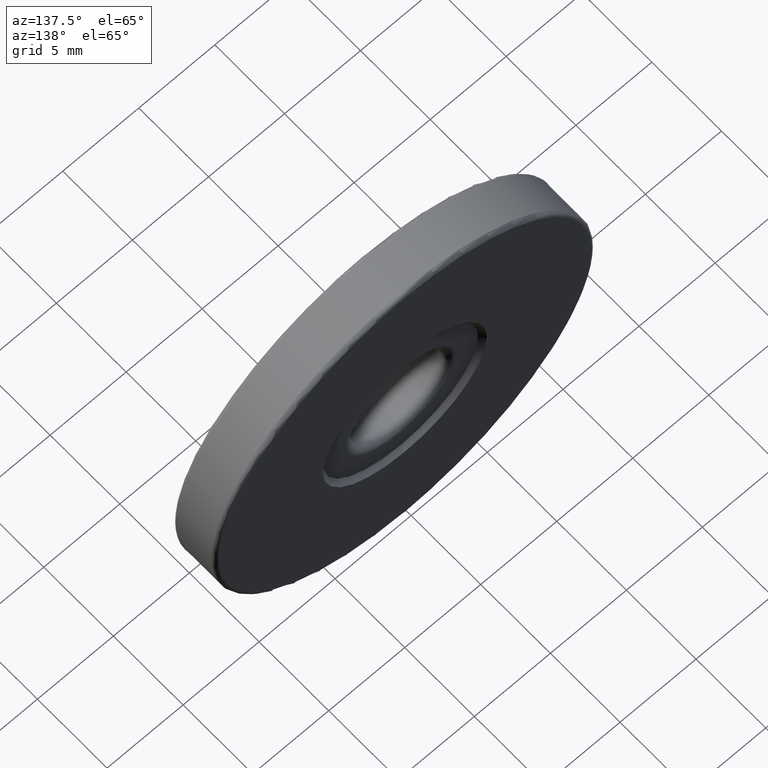
[diagram: clean part render]
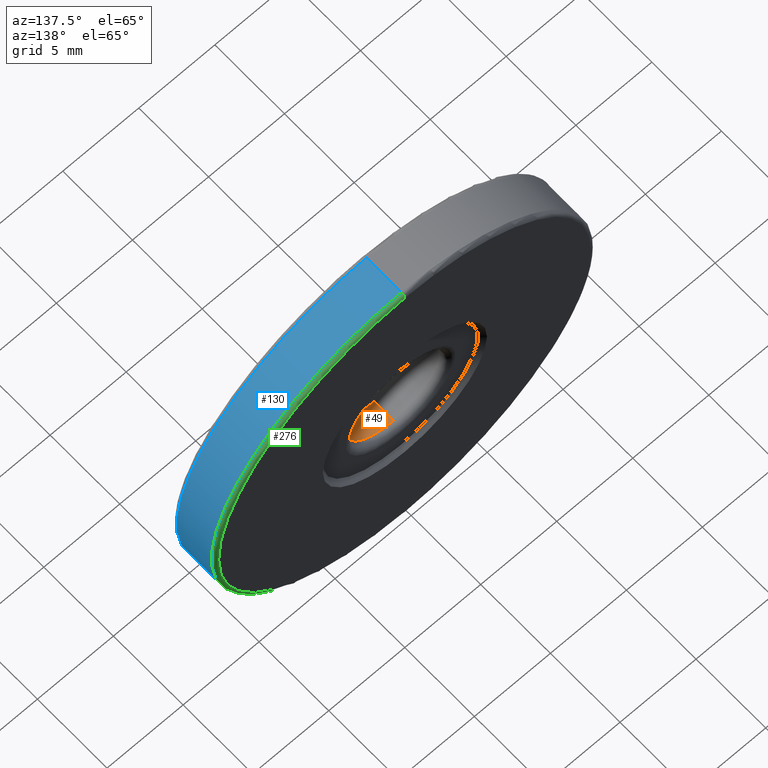
[diagram: same view with three faces highlighted in distinct colors, each labeled with its STEP entity id]
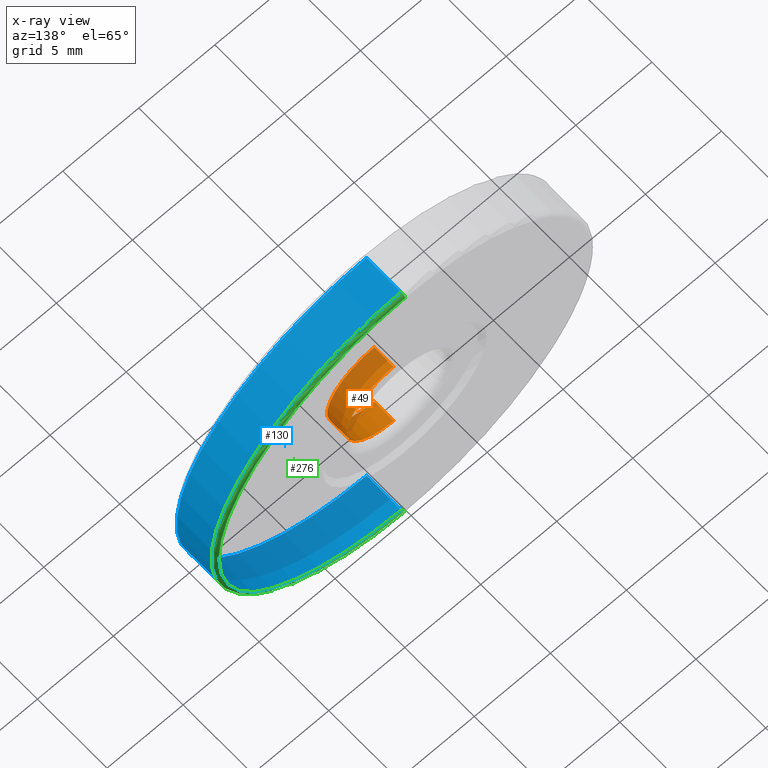
[diagram: x-ray of the same camera — body ghosted, the three highlighted faces saturated]
A machine part, auxiliary view with three faces highlighted in distinct colors.
The next image is the same camera in x-ray (body ghosted, the three faces saturated) — at least one of them is partly hidden behind the body in this view.
Their STEP definitions:

[orange] entity #49 — the highlighted cylindrical surface (partial cylindrical patch) has radius 3.1 mm, axis along (-0, 1, -0).
#22 = VECTOR ( 'NONE', #591, 1000.000000000000000 ) ;
#28 = VERTEX_POINT ( 'NONE', #466 ) ;
#35 = DIRECTION ( 'NONE',  ( 0.0000000000000000000, -1.000000000000000000, 0.0000000000000000000 ) ) ;
#39 = CARTESIAN_POINT ( 'NONE',  ( -4.682026255059964726, -2.294975976998275158, 25.00000000000000000 ) ) ;
#49 = ADVANCED_FACE ( 'NONE', ( #149 ), #342, .F. ) ;
#56 = CARTESIAN_POINT ( 'NONE',  ( -4.682026255059964726, -3.094975976998274536, 25.00000000000000000 ) ) ;
#67 = LINE ( 'NONE', #394, #425 ) ;
#73 = CIRCLE ( 'NONE', #305, 3.099999999999998757 ) ;
#92 = EDGE_LOOP ( 'NONE', ( #614, #600, #431, #328 ) ) ;
#125 = AXIS2_PLACEMENT_3D ( 'NONE', #56, #532, #430 ) ;
#147 = VERTEX_POINT ( 'NONE', #383 ) ;
#149 = FACE_OUTER_BOUND ( 'NONE', #92, .T. ) ;
#185 = DIRECTION ( 'NONE',  ( 0.0000000000000000000, 0.0000000000000000000, -1.000000000000000000 ) ) ;
#202 = EDGE_CURVE ( 'NONE', #147, #509, #599, .T. ) ;
#217 = DIRECTION ( 'NONE',  ( -0.0000000000000000000, 1.000000000000000000, -0.0000000000000000000 ) ) ;
#305 = AXIS2_PLACEMENT_3D ( 'NONE', #446, #538, #307 ) ;
#307 = DIRECTION ( 'NONE',  ( 0.0000000000000000000, 0.0000000000000000000, 1.000000000000000000 ) ) ;
#313 = CARTESIAN_POINT ( 'NONE',  ( -4.682026255059964726, -3.094975976998274536, 21.90000000000000213 ) ) ;
#315 = EDGE_CURVE ( 'NONE', #326, #28, #67, .T. ) ;
#326 = VERTEX_POINT ( 'NONE', #347 ) ;
#328 = ORIENTED_EDGE ( 'NONE', *, *, #339, .T. ) ;
#334 = AXIS2_PLACEMENT_3D ( 'NONE', #39, #35, #185 ) ;
#339 = EDGE_CURVE ( 'NONE', #28, #509, #73, .T. ) ;
#342 = CYLINDRICAL_SURFACE ( 'NONE', #125, 3.099999999999998757 ) ;
#347 = CARTESIAN_POINT ( 'NONE',  ( -4.682026255059964726, -2.294975976998275158, 28.10000000000000142 ) ) ;
#375 = EDGE_CURVE ( 'NONE', #147, #326, #469, .T. ) ;
#383 = CARTESIAN_POINT ( 'NONE',  ( -4.682026255059964726, -2.294975976998275158, 21.90000000000000213 ) ) ;
#394 = CARTESIAN_POINT ( 'NONE',  ( -4.682026255059964726, -3.094975976998274536, 28.10000000000000142 ) ) ;
#425 = VECTOR ( 'NONE', #217, 1000.000000000000000 ) ;
#430 = DIRECTION ( 'NONE',  ( 0.0000000000000000000, 0.0000000000000000000, 1.000000000000000000 ) ) ;
#431 = ORIENTED_EDGE ( 'NONE', *, *, #315, .T. ) ;
#446 = CARTESIAN_POINT ( 'NONE',  ( -4.682026255059964726, -0.8949759769982746915, 25.00000000000000000 ) ) ;
#466 = CARTESIAN_POINT ( 'NONE',  ( -4.682026255059964726, -0.8949759769982746915, 28.10000000000000142 ) ) ;
#469 = CIRCLE ( 'NONE', #334, 3.099999999999998757 ) ;
#509 = VERTEX_POINT ( 'NONE', #608 ) ;
#532 = DIRECTION ( 'NONE',  ( -0.0000000000000000000, 1.000000000000000000, -0.0000000000000000000 ) ) ;
#538 = DIRECTION ( 'NONE',  ( 0.0000000000000000000, 1.000000000000000000, 0.0000000000000000000 ) ) ;
#591 = DIRECTION ( 'NONE',  ( -0.0000000000000000000, 1.000000000000000000, -0.0000000000000000000 ) ) ;
#599 = LINE ( 'NONE', #313, #22 ) ;
#600 = ORIENTED_EDGE ( 'NONE', *, *, #375, .T. ) ;
#608 = CARTESIAN_POINT ( 'NONE',  ( -4.682026255059964726, -0.8949759769982746915, 21.90000000000000213 ) ) ;
#614 = ORIENTED_EDGE ( 'NONE', *, *, #202, .F. ) ;

[blue] entity #130 — the highlighted cylindrical surface (partial cylindrical patch) has radius 12.5 mm, axis along (-0, -1, -0).
#8 = DIRECTION ( 'NONE',  ( 0.0000000000000000000, 0.0000000000000000000, -1.000000000000000000 ) ) ;
#107 = CARTESIAN_POINT ( 'NONE',  ( -4.682026255059964726, -0.3449759769982747581, 37.50000000000000711 ) ) ;
#123 = EDGE_LOOP ( 'NONE', ( #258, #506, #568, #551 ) ) ;
#129 = VERTEX_POINT ( 'NONE', #475 ) ;
#130 = ADVANCED_FACE ( 'NONE', ( #472 ), #199, .T. ) ;
#151 = DIRECTION ( 'NONE',  ( -0.0000000000000000000, -1.000000000000000000, -0.0000000000000000000 ) ) ;
#156 = DIRECTION ( 'NONE',  ( -0.0000000000000000000, -1.000000000000000000, -0.0000000000000000000 ) ) ;
#165 = DIRECTION ( 'NONE',  ( 0.0000000000000000000, 1.000000000000000000, 0.0000000000000000000 ) ) ;
#172 = DIRECTION ( 'NONE',  ( 0.0000000000000000000, 0.0000000000000000000, 1.000000000000000000 ) ) ;
#191 = VERTEX_POINT ( 'NONE', #107 ) ;
#197 = EDGE_CURVE ( 'NONE', #300, #311, #388, .T. ) ;
#199 = CYLINDRICAL_SURFACE ( 'NONE', #396, 12.50000000000000000 ) ;
#203 = AXIS2_PLACEMENT_3D ( 'NONE', #350, #165, #359 ) ;
#249 = CARTESIAN_POINT ( 'NONE',  ( -4.682026255059964726, -0.09497597699827478590, 25.00000000000000000 ) ) ;
#251 = CARTESIAN_POINT ( 'NONE',  ( -4.682026255059962949, -2.844975976998274536, 37.50000000000000711 ) ) ;
#258 = ORIENTED_EDGE ( 'NONE', *, *, #368, .T. ) ;
#264 = VECTOR ( 'NONE', #338, 1000.000000000000000 ) ;
#277 = CARTESIAN_POINT ( 'NONE',  ( -4.682026255059964726, -0.3449759769982747581, 25.00000000000000000 ) ) ;
#300 = VERTEX_POINT ( 'NONE', #251 ) ;
#311 = VERTEX_POINT ( 'NONE', #450 ) ;
#338 = DIRECTION ( 'NONE',  ( -0.0000000000000000000, -1.000000000000000000, -0.0000000000000000000 ) ) ;
#350 = CARTESIAN_POINT ( 'NONE',  ( -4.682026255059964726, -2.844975976998274536, 25.00000000000000000 ) ) ;
#359 = DIRECTION ( 'NONE',  ( 0.0000000000000000000, 0.0000000000000000000, 1.000000000000000000 ) ) ;
#368 = EDGE_CURVE ( 'NONE', #129, #191, #554, .T. ) ;
#382 = CARTESIAN_POINT ( 'NONE',  ( -4.682026255059962949, -0.09497597699827478590, 37.50000000000000711 ) ) ;
#388 = CIRCLE ( 'NONE', #203, 12.50000000000000355 ) ;
#396 = AXIS2_PLACEMENT_3D ( 'NONE', #249, #156, #8 ) ;
#450 = CARTESIAN_POINT ( 'NONE',  ( -4.682026255059964726, -2.844975976998274536, 12.50000000000000000 ) ) ;
#471 = LINE ( 'NONE', #577, #264 ) ;
#472 = FACE_OUTER_BOUND ( 'NONE', #123, .T. ) ;
#475 = CARTESIAN_POINT ( 'NONE',  ( -4.682026255059962949, -0.3449759769982747581, 12.50000000000000000 ) ) ;
#506 = ORIENTED_EDGE ( 'NONE', *, *, #602, .T. ) ;
#531 = VECTOR ( 'NONE', #151, 1000.000000000000000 ) ;
#551 = ORIENTED_EDGE ( 'NONE', *, *, #610, .F. ) ;
#554 = CIRCLE ( 'NONE', #596, 12.50000000000000355 ) ;
#568 = ORIENTED_EDGE ( 'NONE', *, *, #197, .T. ) ;
#577 = CARTESIAN_POINT ( 'NONE',  ( -4.682026255059964726, -0.09497597699827478590, 12.50000000000000000 ) ) ;
#580 = LINE ( 'NONE', #382, #531 ) ;
#596 = AXIS2_PLACEMENT_3D ( 'NONE', #277, #616, #172 ) ;
#602 = EDGE_CURVE ( 'NONE', #191, #300, #580, .T. ) ;
#610 = EDGE_CURVE ( 'NONE', #129, #311, #471, .T. ) ;
#616 = DIRECTION ( 'NONE',  ( -0.0000000000000000000, -1.000000000000000000, -0.0000000000000000000 ) ) ;

[green] entity #276 — the highlighted toroidal blend (fillet) surface has major radius 12.25 mm and minor (blend) radius 0.25 mm.
#27 = FACE_OUTER_BOUND ( 'NONE', #290, .T. ) ;
#38 = ORIENTED_EDGE ( 'NONE', *, *, #368, .F. ) ;
#78 = CARTESIAN_POINT ( 'NONE',  ( -4.682026255059964726, -0.3449759769982747581, 37.25000000000000711 ) ) ;
#83 = CIRCLE ( 'NONE', #427, 0.2500000000000002220 ) ;
#102 = ORIENTED_EDGE ( 'NONE', *, *, #219, .T. ) ;
#107 = CARTESIAN_POINT ( 'NONE',  ( -4.682026255059964726, -0.3449759769982747581, 37.50000000000000711 ) ) ;
#124 = CARTESIAN_POINT ( 'NONE',  ( -4.682026255059964726, -0.3449759769982747581, 25.00000000000000000 ) ) ;
#129 = VERTEX_POINT ( 'NONE', #475 ) ;
#138 = ORIENTED_EDGE ( 'NONE', *, *, #507, .F. ) ;
#143 = CIRCLE ( 'NONE', #213, 0.2500000000000002220 ) ;
#160 = DIRECTION ( 'NONE',  ( 0.0000000000000000000, 0.0000000000000000000, 1.000000000000000000 ) ) ;
#168 = DIRECTION ( 'NONE',  ( 0.0000000000000000000, 0.0000000000000000000, -1.000000000000000000 ) ) ;
#172 = DIRECTION ( 'NONE',  ( 0.0000000000000000000, 0.0000000000000000000, 1.000000000000000000 ) ) ;
#181 = CARTESIAN_POINT ( 'NONE',  ( -4.682026255059964726, -0.09497597699827478590, 37.25000000000000711 ) ) ;
#191 = VERTEX_POINT ( 'NONE', #107 ) ;
#210 = DIRECTION ( 'NONE',  ( 0.0000000000000000000, 0.0000000000000000000, 1.000000000000000000 ) ) ;
#213 = AXIS2_PLACEMENT_3D ( 'NONE', #547, #489, #168 ) ;
#216 = ORIENTED_EDGE ( 'NONE', *, *, #247, .F. ) ;
#219 = EDGE_CURVE ( 'NONE', #129, #319, #143, .T. ) ;
#247 = EDGE_CURVE ( 'NONE', #463, #319, #293, .T. ) ;
#266 = DIRECTION ( 'NONE',  ( 0.0000000000000000000, 1.000000000000000000, 0.0000000000000000000 ) ) ;
#276 = ADVANCED_FACE ( 'NONE', ( #27 ), #304, .T. ) ;
#277 = CARTESIAN_POINT ( 'NONE',  ( -4.682026255059964726, -0.3449759769982747581, 25.00000000000000000 ) ) ;
#290 = EDGE_LOOP ( 'NONE', ( #38, #102, #216, #138 ) ) ;
#293 = CIRCLE ( 'NONE', #584, 12.25000000000000355 ) ;
#304 = TOROIDAL_SURFACE ( 'NONE', #615, 12.25000000000000000, 0.2500000000000000000 ) ;
#319 = VERTEX_POINT ( 'NONE', #601 ) ;
#357 = CARTESIAN_POINT ( 'NONE',  ( -4.682026255059964726, -0.09497597699827478590, 25.00000000000000000 ) ) ;
#368 = EDGE_CURVE ( 'NONE', #129, #191, #554, .T. ) ;
#408 = DIRECTION ( 'NONE',  ( 0.0000000000000000000, 0.0000000000000000000, 1.000000000000000000 ) ) ;
#427 = AXIS2_PLACEMENT_3D ( 'NONE', #78, #508, #408 ) ;
#443 = DIRECTION ( 'NONE',  ( 0.0000000000000000000, 1.000000000000000000, 0.0000000000000000000 ) ) ;
#463 = VERTEX_POINT ( 'NONE', #181 ) ;
#475 = CARTESIAN_POINT ( 'NONE',  ( -4.682026255059962949, -0.3449759769982747581, 12.50000000000000000 ) ) ;
#489 = DIRECTION ( 'NONE',  ( 1.000000000000000000, -0.0000000000000000000, 1.224646799147353207E-16 ) ) ;
#507 = EDGE_CURVE ( 'NONE', #191, #463, #83, .T. ) ;
#508 = DIRECTION ( 'NONE',  ( -1.000000000000000000, 0.0000000000000000000, 0.0000000000000000000 ) ) ;
#547 = CARTESIAN_POINT ( 'NONE',  ( -4.682026255059962949, -0.3449759769982747581, 12.75000000000000178 ) ) ;
#554 = CIRCLE ( 'NONE', #596, 12.50000000000000355 ) ;
#584 = AXIS2_PLACEMENT_3D ( 'NONE', #357, #266, #210 ) ;
#596 = AXIS2_PLACEMENT_3D ( 'NONE', #277, #616, #172 ) ;
#601 = CARTESIAN_POINT ( 'NONE',  ( -4.682026255059962949, -0.09497597699827478590, 12.75000000000000178 ) ) ;
#615 = AXIS2_PLACEMENT_3D ( 'NONE', #124, #443, #160 ) ;
#616 = DIRECTION ( 'NONE',  ( -0.0000000000000000000, -1.000000000000000000, -0.0000000000000000000 ) ) ;